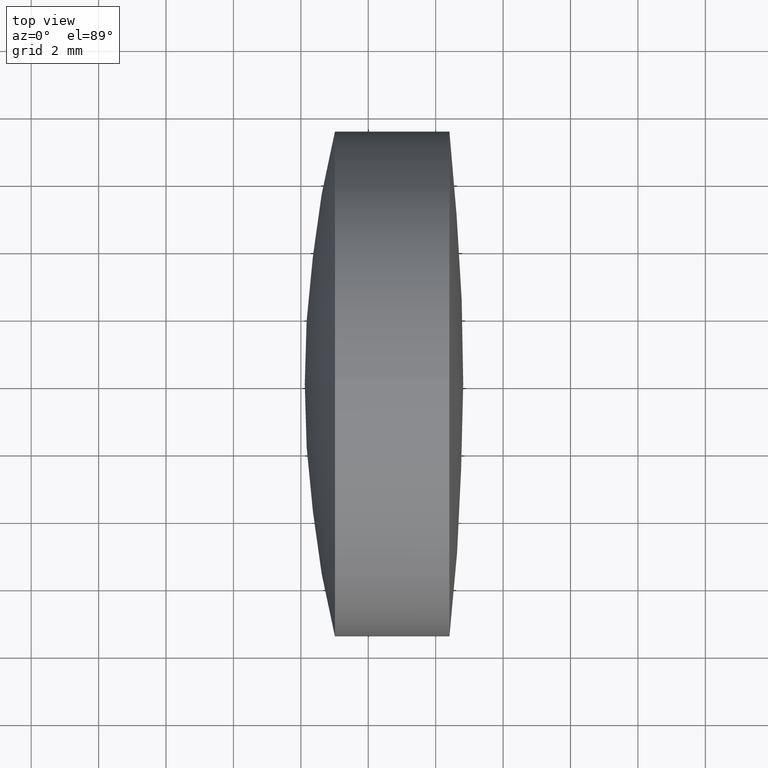
[diagram: clean part render]
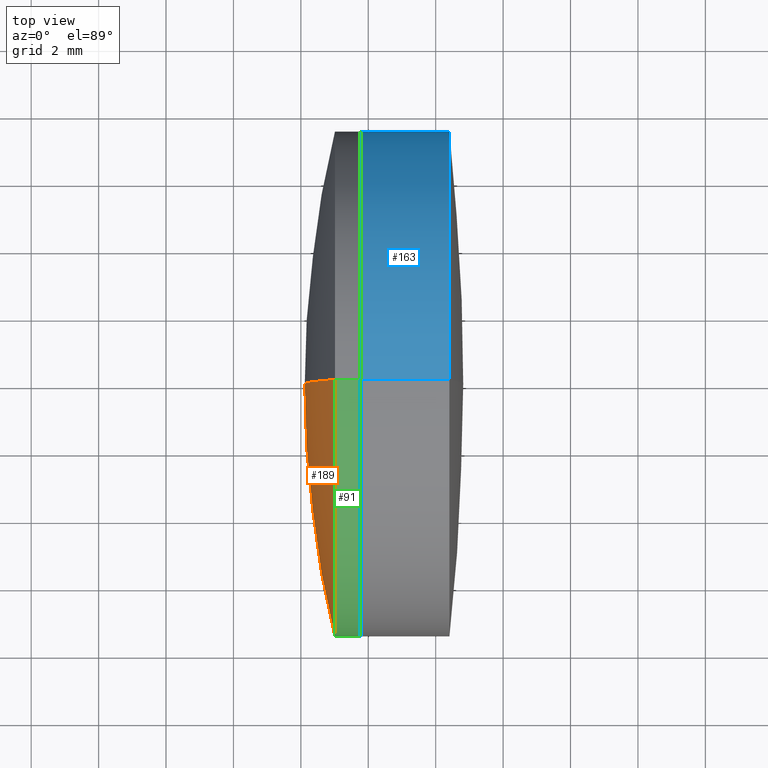
[diagram: same view with three faces highlighted in distinct colors, each labeled with its STEP entity id]
A machine part, top view with three faces highlighted in distinct colors.
Their STEP definitions:

[orange] entity #189 — the highlighted spherical surface has radius 31.888 mm.
#4 = ORIENTED_EDGE ( 'NONE', *, *, #226, .T. ) ;
#6 = CARTESIAN_POINT ( 'NONE',  ( 13.01076923225601200, 0.0000000000000000000, -7.500000000000007100 ) ) ;
#8 = CARTESIAN_POINT ( 'NONE',  ( 44.00422892942437900, 0.0000000000000000000, 2.710505431212750000E-017 ) ) ;
#27 = AXIS2_PLACEMENT_3D ( 'NONE', #320, #286, #225 ) ;
#36 = EDGE_CURVE ( 'NONE', #134, #109, #296, .T. ) ;
#39 = DIRECTION ( 'NONE',  ( 0.0000000000000000000, -1.000000000000000000, -1.224646799147353200E-016 ) ) ;
#98 = SPHERICAL_SURFACE ( 'NONE', #173, 31.88799999999999800 ) ;
#109 = VERTEX_POINT ( 'NONE', #167 ) ;
#116 = AXIS2_PLACEMENT_3D ( 'NONE', #215, #140, #325 ) ;
#131 = CIRCLE ( 'NONE', #264, 31.88799999999999800 ) ;
#134 = VERTEX_POINT ( 'NONE', #6 ) ;
#140 = DIRECTION ( 'NONE',  ( -1.000000000000000000, -0.0000000000000000000, -0.0000000000000000000 ) ) ;
#142 = CARTESIAN_POINT ( 'NONE',  ( 13.01076923225601200, -9.184850993605155800E-016, 7.500000000000007100 ) ) ;
#158 = EDGE_LOOP ( 'NONE', ( #305, #4, #314 ) ) ;
#159 = VERTEX_POINT ( 'NONE', #142 ) ;
#167 = CARTESIAN_POINT ( 'NONE',  ( 12.11622892942437700, 0.0000000000000000000, -1.925471802248412300E-015 ) ) ;
#173 = AXIS2_PLACEMENT_3D ( 'NONE', #207, #283, #287 ) ;
#189 = ADVANCED_FACE ( 'NONE', ( #291 ), #98, .T. ) ;
#207 = CARTESIAN_POINT ( 'NONE',  ( 44.00422892942437900, 0.0000000000000000000, 2.710505431212750000E-017 ) ) ;
#215 = CARTESIAN_POINT ( 'NONE',  ( 13.01076923225601300, 0.0000000000000000000, 0.0000000000000000000 ) ) ;
#225 = DIRECTION ( 'NONE',  ( 0.0000000000000000000, 0.0000000000000000000, 1.000000000000000000 ) ) ;
#226 = EDGE_CURVE ( 'NONE', #159, #109, #131, .T. ) ;
#251 = CIRCLE ( 'NONE', #116, 7.500000000000000000 ) ;
#264 = AXIS2_PLACEMENT_3D ( 'NONE', #8, #39, #338 ) ;
#283 = DIRECTION ( 'NONE',  ( -0.0000000000000000000, -1.000000000000000000, -0.0000000000000000000 ) ) ;
#286 = DIRECTION ( 'NONE',  ( 0.0000000000000000000, 1.000000000000000000, -0.0000000000000000000 ) ) ;
#287 = DIRECTION ( 'NONE',  ( 0.0000000000000000000, 0.0000000000000000000, -1.000000000000000000 ) ) ;
#291 = FACE_OUTER_BOUND ( 'NONE', #158, .T. ) ;
#296 = CIRCLE ( 'NONE', #27, 31.88799999999999800 ) ;
#299 = EDGE_CURVE ( 'NONE', #134, #159, #251, .T. ) ;
#305 = ORIENTED_EDGE ( 'NONE', *, *, #299, .T. ) ;
#314 = ORIENTED_EDGE ( 'NONE', *, *, #36, .F. ) ;
#320 = CARTESIAN_POINT ( 'NONE',  ( 44.00422892942437900, 0.0000000000000000000, 2.710505431212750000E-017 ) ) ;
#325 = DIRECTION ( 'NONE',  ( 0.0000000000000000000, 0.0000000000000000000, 1.000000000000000000 ) ) ;
#338 = DIRECTION ( 'NONE',  ( 0.0000000000000000000, 1.224646799147353500E-016, -1.000000000000000000 ) ) ;

[blue] entity #163 — the highlighted cylindrical surface (partial cylindrical patch) has radius 7.5 mm, axis along (-1, -0, -0).
#2 = EDGE_CURVE ( 'NONE', #65, #75, #78, .T. ) ;
#3 = CIRCLE ( 'NONE', #100, 7.500000000000005300 ) ;
#19 = ORIENTED_EDGE ( 'NONE', *, *, #313, .F. ) ;
#22 = DIRECTION ( 'NONE',  ( -1.000000000000000000, -0.0000000000000000000, -0.0000000000000000000 ) ) ;
#57 = CIRCLE ( 'NONE', #205, 7.499999999999992900 ) ;
#64 = CARTESIAN_POINT ( 'NONE',  ( 16.40726006000681300, 0.0000000000000000000, 7.499999999999992900 ) ) ;
#65 = VERTEX_POINT ( 'NONE', #64 ) ;
#70 = VECTOR ( 'NONE', #82, 1000.000000000000000 ) ;
#75 = VERTEX_POINT ( 'NONE', #304 ) ;
#76 = CARTESIAN_POINT ( 'NONE',  ( 16.40726006000681300, 9.184850993605144000E-016, -7.499999999999992900 ) ) ;
#78 = LINE ( 'NONE', #230, #153 ) ;
#82 = DIRECTION ( 'NONE',  ( -1.000000000000000000, -0.0000000000000000000, -0.0000000000000000000 ) ) ;
#84 = CARTESIAN_POINT ( 'NONE',  ( 16.40726006000681300, 0.0000000000000000000, 0.0000000000000000000 ) ) ;
#85 = ORIENTED_EDGE ( 'NONE', *, *, #2, .F. ) ;
#100 = AXIS2_PLACEMENT_3D ( 'NONE', #280, #323, #292 ) ;
#112 = DIRECTION ( 'NONE',  ( 0.0000000000000000000, 0.0000000000000000000, 1.000000000000000000 ) ) ;
#114 = ORIENTED_EDGE ( 'NONE', *, *, #123, .T. ) ;
#117 = CARTESIAN_POINT ( 'NONE',  ( 13.76976148905017200, 9.184850993605159800E-016, -7.500000000000007100 ) ) ;
#122 = CYLINDRICAL_SURFACE ( 'NONE', #311, 7.499999999999999100 ) ;
#123 = EDGE_CURVE ( 'NONE', #315, #269, #150, .T. ) ;
#150 = LINE ( 'NONE', #206, #70 ) ;
#153 = VECTOR ( 'NONE', #22, 1000.000000000000000 ) ;
#156 = EDGE_LOOP ( 'NONE', ( #345, #114, #19, #85 ) ) ;
#163 = ADVANCED_FACE ( 'NONE', ( #231 ), #122, .T. ) ;
#205 = AXIS2_PLACEMENT_3D ( 'NONE', #84, #274, #112 ) ;
#206 = CARTESIAN_POINT ( 'NONE',  ( -0.5519199926577972300, 9.184850993605147900E-016, -7.499999999999999100 ) ) ;
#230 = CARTESIAN_POINT ( 'NONE',  ( -0.5519199926577972300, 0.0000000000000000000, 7.499999999999999100 ) ) ;
#231 = FACE_OUTER_BOUND ( 'NONE', #156, .T. ) ;
#269 = VERTEX_POINT ( 'NONE', #117 ) ;
#274 = DIRECTION ( 'NONE',  ( -1.000000000000000000, -0.0000000000000000000, -0.0000000000000000000 ) ) ;
#278 = DIRECTION ( 'NONE',  ( -1.000000000000000000, -0.0000000000000000000, -0.0000000000000000000 ) ) ;
#280 = CARTESIAN_POINT ( 'NONE',  ( 13.76976148905017200, 0.0000000000000000000, 0.0000000000000000000 ) ) ;
#288 = DIRECTION ( 'NONE',  ( 0.0000000000000000000, 0.0000000000000000000, 1.000000000000000000 ) ) ;
#292 = DIRECTION ( 'NONE',  ( 0.0000000000000000000, 0.0000000000000000000, 1.000000000000000000 ) ) ;
#293 = EDGE_CURVE ( 'NONE', #65, #315, #57, .T. ) ;
#304 = CARTESIAN_POINT ( 'NONE',  ( 13.76976148905017200, 0.0000000000000000000, 7.500000000000007100 ) ) ;
#311 = AXIS2_PLACEMENT_3D ( 'NONE', #328, #278, #288 ) ;
#313 = EDGE_CURVE ( 'NONE', #75, #269, #3, .T. ) ;
#315 = VERTEX_POINT ( 'NONE', #76 ) ;
#323 = DIRECTION ( 'NONE',  ( -1.000000000000000000, -0.0000000000000000000, -0.0000000000000000000 ) ) ;
#328 = CARTESIAN_POINT ( 'NONE',  ( -0.5519199926577972300, 0.0000000000000000000, 0.0000000000000000000 ) ) ;
#345 = ORIENTED_EDGE ( 'NONE', *, *, #293, .T. ) ;

[green] entity #91 — the highlighted cylindrical surface (partial cylindrical patch) has radius 7.5 mm, axis along (-1, -0, -0).
#6 = CARTESIAN_POINT ( 'NONE',  ( 13.01076923225601200, 0.0000000000000000000, -7.500000000000007100 ) ) ;
#11 = LINE ( 'NONE', #342, #49 ) ;
#15 = CARTESIAN_POINT ( 'NONE',  ( 13.76976148905017500, 0.0000000000000000000, 0.0000000000000000000 ) ) ;
#21 = DIRECTION ( 'NONE',  ( -1.000000000000000000, -0.0000000000000000000, -0.0000000000000000000 ) ) ;
#29 = FACE_OUTER_BOUND ( 'NONE', #102, .T. ) ;
#49 = VECTOR ( 'NONE', #21, 1000.000000000000000 ) ;
#54 = VERTEX_POINT ( 'NONE', #339 ) ;
#55 = EDGE_CURVE ( 'NONE', #136, #134, #11, .T. ) ;
#81 = CIRCLE ( 'NONE', #135, 7.500000000000000000 ) ;
#88 = AXIS2_PLACEMENT_3D ( 'NONE', #324, #186, #252 ) ;
#91 = ADVANCED_FACE ( 'NONE', ( #29 ), #143, .T. ) ;
#102 = EDGE_LOOP ( 'NONE', ( #212, #246, #272, #241 ) ) ;
#116 = AXIS2_PLACEMENT_3D ( 'NONE', #215, #140, #325 ) ;
#119 = CARTESIAN_POINT ( 'NONE',  ( 13.76976148905017500, 9.184850993605147900E-016, -7.500000000000000000 ) ) ;
#129 = EDGE_CURVE ( 'NONE', #54, #159, #266, .T. ) ;
#134 = VERTEX_POINT ( 'NONE', #6 ) ;
#135 = AXIS2_PLACEMENT_3D ( 'NONE', #15, #297, #139 ) ;
#136 = VERTEX_POINT ( 'NONE', #119 ) ;
#139 = DIRECTION ( 'NONE',  ( 0.0000000000000000000, 0.0000000000000000000, 1.000000000000000000 ) ) ;
#140 = DIRECTION ( 'NONE',  ( -1.000000000000000000, -0.0000000000000000000, -0.0000000000000000000 ) ) ;
#142 = CARTESIAN_POINT ( 'NONE',  ( 13.01076923225601200, -9.184850993605155800E-016, 7.500000000000007100 ) ) ;
#143 = CYLINDRICAL_SURFACE ( 'NONE', #88, 7.500000000000000000 ) ;
#159 = VERTEX_POINT ( 'NONE', #142 ) ;
#186 = DIRECTION ( 'NONE',  ( -1.000000000000000000, -0.0000000000000000000, -0.0000000000000000000 ) ) ;
#212 = ORIENTED_EDGE ( 'NONE', *, *, #55, .F. ) ;
#215 = CARTESIAN_POINT ( 'NONE',  ( 13.01076923225601300, 0.0000000000000000000, 0.0000000000000000000 ) ) ;
#227 = DIRECTION ( 'NONE',  ( -1.000000000000000000, -0.0000000000000000000, -0.0000000000000000000 ) ) ;
#241 = ORIENTED_EDGE ( 'NONE', *, *, #299, .F. ) ;
#246 = ORIENTED_EDGE ( 'NONE', *, *, #270, .T. ) ;
#251 = CIRCLE ( 'NONE', #116, 7.500000000000000000 ) ;
#252 = DIRECTION ( 'NONE',  ( 0.0000000000000000000, 0.0000000000000000000, 1.000000000000000000 ) ) ;
#253 = VECTOR ( 'NONE', #227, 1000.000000000000000 ) ;
#266 = LINE ( 'NONE', #275, #253 ) ;
#270 = EDGE_CURVE ( 'NONE', #136, #54, #81, .T. ) ;
#272 = ORIENTED_EDGE ( 'NONE', *, *, #129, .T. ) ;
#275 = CARTESIAN_POINT ( 'NONE',  ( -9.702612178336682500, 0.0000000000000000000, 7.500000000000000000 ) ) ;
#297 = DIRECTION ( 'NONE',  ( -1.000000000000000000, -0.0000000000000000000, -0.0000000000000000000 ) ) ;
#299 = EDGE_CURVE ( 'NONE', #134, #159, #251, .T. ) ;
#324 = CARTESIAN_POINT ( 'NONE',  ( -9.702612178336682500, 0.0000000000000000000, 0.0000000000000000000 ) ) ;
#325 = DIRECTION ( 'NONE',  ( 0.0000000000000000000, 0.0000000000000000000, 1.000000000000000000 ) ) ;
#339 = CARTESIAN_POINT ( 'NONE',  ( 13.76976148905017500, 0.0000000000000000000, 7.500000000000000000 ) ) ;
#342 = CARTESIAN_POINT ( 'NONE',  ( -9.702612178336682500, 9.184850993605147900E-016, -7.500000000000000000 ) ) ;